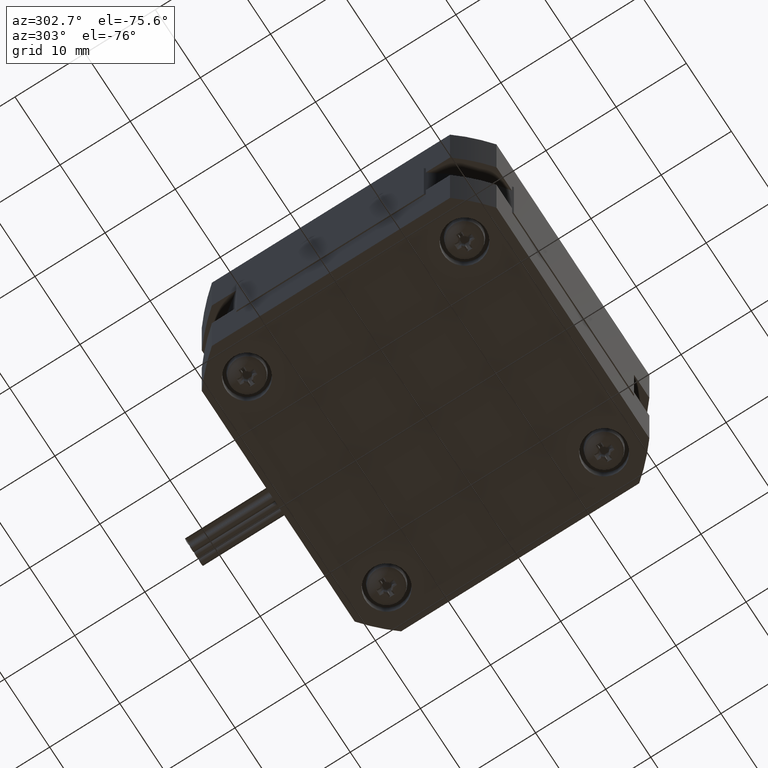
[diagram: clean part render]
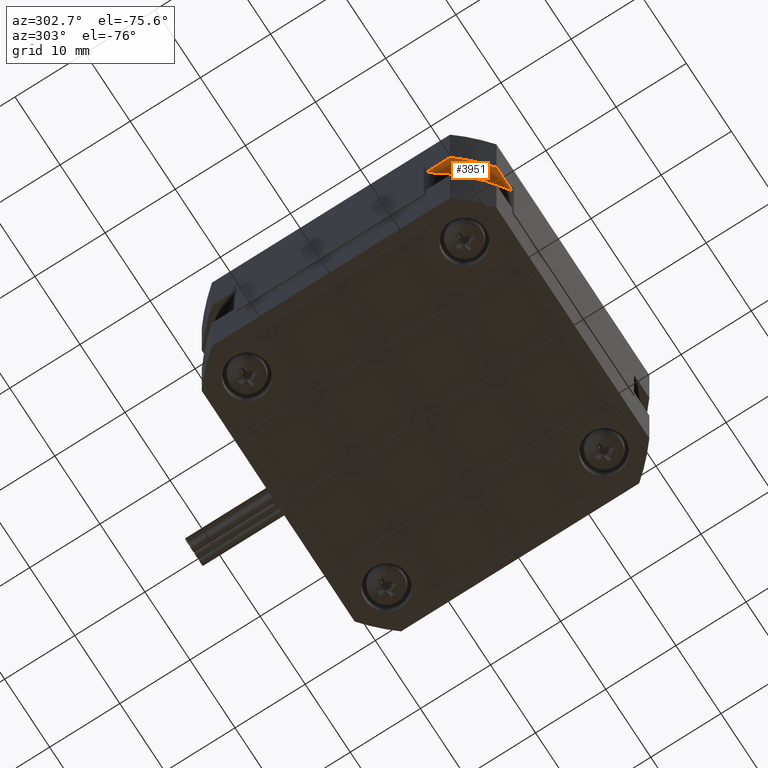
[diagram: same view with one face highlighted and labeled with its STEP entity id]
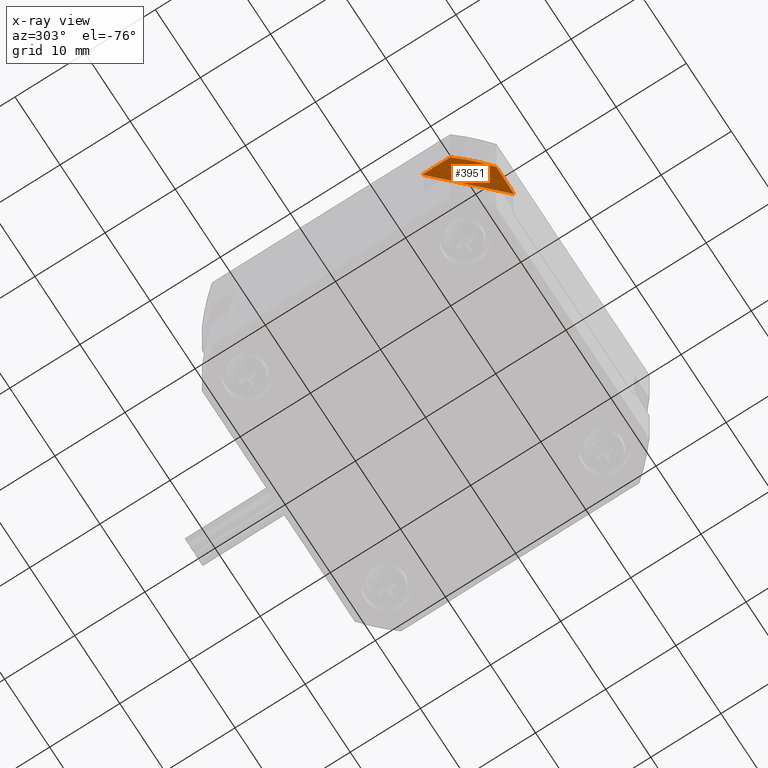
[diagram: x-ray of the same camera — body ghosted, the highlighted face saturated]
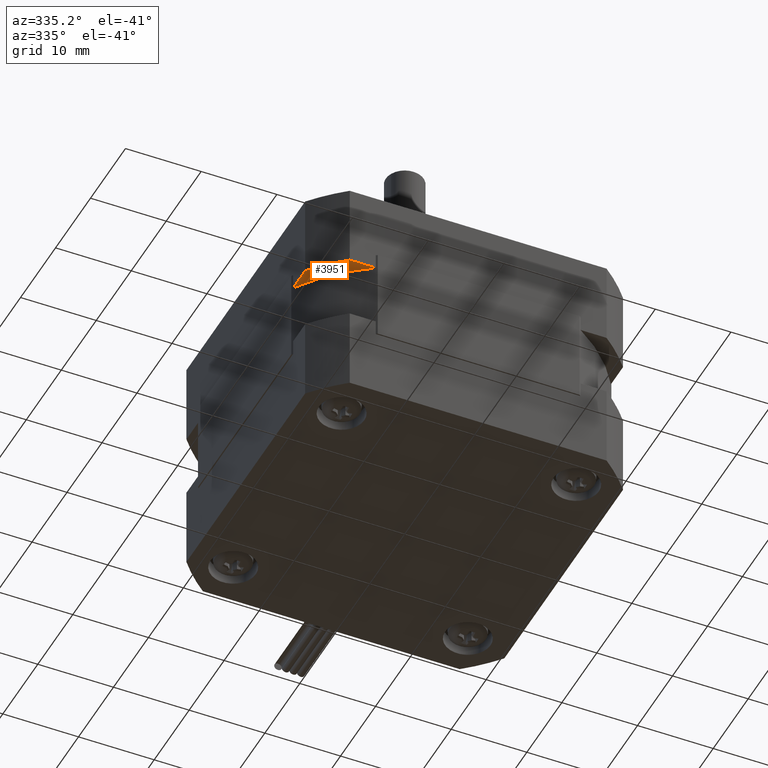
[diagram: same view with one face highlighted and labeled with its STEP entity id]
A machine part, auxiliary view. The second image highlights one B-rep face of the part: STEP entity #3951.
The next image is the same camera in x-ray: the body ghosted, the highlighted face saturated — about 11% of this face is hidden behind the body in this view.
A second angle (auxiliary view) of the same face is appended — the face is thin or edge-on in the first view.
In plain terms, the highlighted planar face has unit normal (-0, -0, 1).
Its self-contained STEP definition (entity closure, byte-faithful):
#116=LINE('',#6006,#364);
#138=LINE('',#6055,#386);
#139=LINE('',#6058,#387);
#364=VECTOR('',#4753,11.3137084989848);
#386=VECTOR('',#4795,3.97056274847712);
#387=VECTOR('',#4798,3.97056274847715);
#614=PLANE('',#4233);
#881=FACE_OUTER_BOUND('',#1141,.T.);
#1141=EDGE_LOOP('',(#2688,#2689,#2690,#2691));
#1466=CIRCLE('',#4234,27.);
#1701=VERTEX_POINT('',#6003);
#1702=VERTEX_POINT('',#6005);
#1719=VERTEX_POINT('',#6054);
#1720=VERTEX_POINT('',#6056);
#2089=EDGE_CURVE('',#1702,#1701,#116,.T.);
#2114=EDGE_CURVE('',#1719,#1701,#138,.T.);
#2115=EDGE_CURVE('',#1720,#1719,#1466,.T.);
#2116=EDGE_CURVE('',#1702,#1720,#139,.T.);
#2688=ORIENTED_EDGE('',*,*,#2089,.T.);
#2689=ORIENTED_EDGE('',*,*,#2114,.F.);
#2690=ORIENTED_EDGE('',*,*,#2115,.F.);
#2691=ORIENTED_EDGE('',*,*,#2116,.F.);
#3951=ADVANCED_FACE('',(#881),#614,.F.);
#4233=AXIS2_PLACEMENT_3D('',#6053,#4793,#4794);
#4234=AXIS2_PLACEMENT_3D('',#6057,#4796,#4797);
#4753=DIRECTION('',(0.707106781186547,-0.707106781186548,6.18223905606736E-16));
#4793=DIRECTION('center_axis',(-8.74300631892311E-16,-2.59037577520082E-32,
1.));
#4794=DIRECTION('ref_axis',(1.,7.54604712049908E-17,8.88178419700125E-16));
#4795=DIRECTION('',(1.,7.54604712049907E-17,8.74300631892311E-16));
#4796=DIRECTION('center_axis',(-8.74300631892311E-16,-2.59037577520082E-32,
1.));
#4797=DIRECTION('ref_axis',(-0.777777777777778,-0.628539361054709,-6.80011602582908E-16));
#4798=DIRECTION('',(7.54604712049907E-17,-1.,4.00713799054067E-32));
#6003=CARTESIAN_POINT('',(-13.,-21.,-5.00000000000013));
#6005=CARTESIAN_POINT('',(-21.,-13.,-5.00000000000013));
#6006=CARTESIAN_POINT('',(-21.,-13.,-5.00000000000013));
#6053=CARTESIAN_POINT('Origin',(8.635959129454E-16,8.30370375404338E-15,
-5.00000000000011));
#6054=CARTESIAN_POINT('',(-16.9705627484771,-21.,-5.00000000000013));
#6055=CARTESIAN_POINT('',(-16.9705627484771,-21.,-5.00000000000013));
#6056=CARTESIAN_POINT('',(-21.,-16.9705627484771,-5.00000000000013));
#6057=CARTESIAN_POINT('Origin',(-2.466270870546E-16,4.73220975404338E-15,
-5.00000000000011));
#6058=CARTESIAN_POINT('',(-21.,-13.,-5.00000000000013));